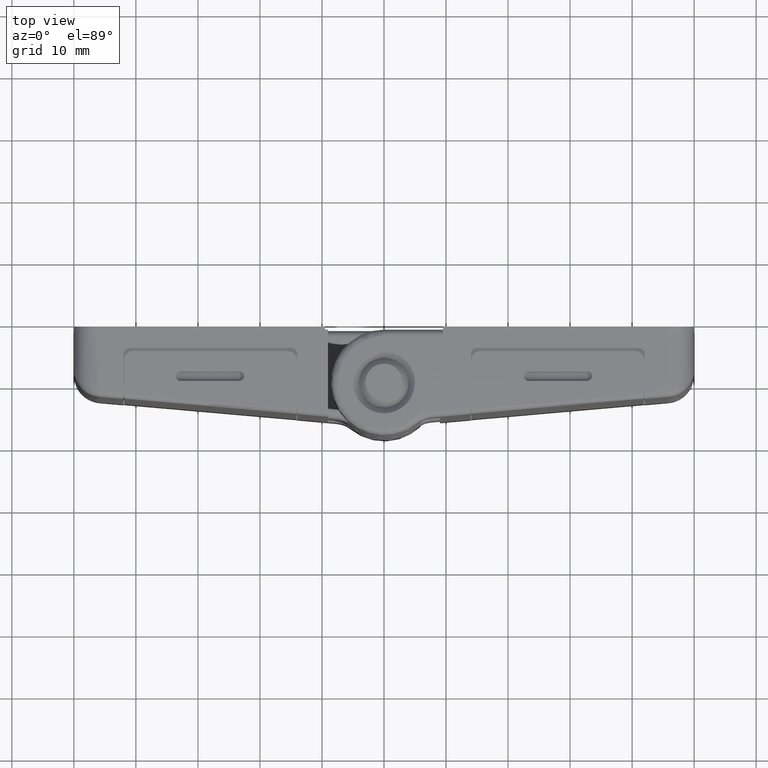
[diagram: clean part render]
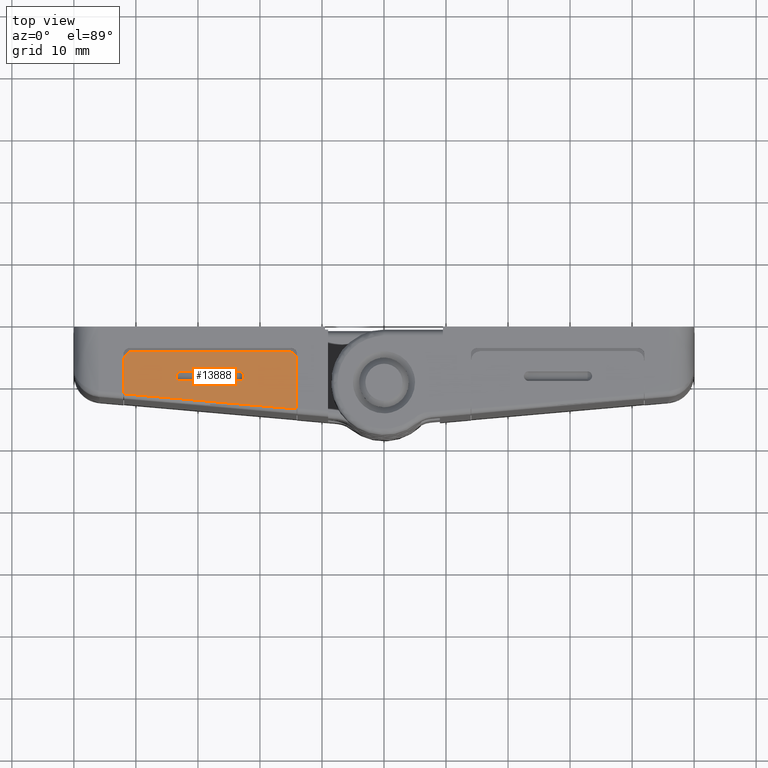
[diagram: same view with one face highlighted and labeled with its STEP entity id]
A machine part, top view. The second image highlights one B-rep face of the part: STEP entity #13888.
In plain terms, the highlighted face is a freeform B-spline surface patch.
Its self-contained STEP definition (entity closure, byte-faithful):
#12845=CARTESIAN_POINT('',(-14.050000000000001,-4.296944128323120,60.0));
#12846=VERTEX_POINT('',#12845);
#12864=CARTESIAN_POINT('',(-41.950000000000003,-1.856009758832115,60.0));
#12865=VERTEX_POINT('',#12864);
#12866=CARTESIAN_POINT('',(-41.950000000000003,-1.856009758832115,60.0));
#12867=CARTESIAN_POINT('',(-14.050000000000001,-4.296944128323120,60.0));
#12868=QUASI_UNIFORM_CURVE('',1,(#12866,#12867),.UNSPECIFIED.,.F.,.U.);
#12869=EDGE_CURVE('',#12865,#12846,#12868,.T.);
#13064=CARTESIAN_POINT('',(-32.799999999999997,1.750000000000000,60.0));
#13065=VERTEX_POINT('',#13064);
#13066=CARTESIAN_POINT('',(-32.799999999999997,0.250000000000000,60.0));
#13067=VERTEX_POINT('',#13066);
#13083=CARTESIAN_POINT('',(-32.799999999999997,0.250000000000000,60.0));
#13084=CARTESIAN_POINT('',(-33.549999999999997,0.250000000000000,60.0));
#13085=CARTESIAN_POINT('',(-33.549999999999997,1.0,60.0));
#13086=CARTESIAN_POINT('',(-33.549999999999997,1.750000000000000,60.0));
#13087=CARTESIAN_POINT('',(-32.799999999999997,1.750000000000000,60.0));
#13095=(BOUNDED_CURVE()B_SPLINE_CURVE(2,(#13083,#13084,#13085,#13086,#13087),.UNSPECIFIED.,.F.,.U.)B_SPLINE_CURVE_WITH_KNOTS((3,2,3),(0.0,0.500000000000000,1.0),.UNSPECIFIED.)CURVE()GEOMETRIC_REPRESENTATION_ITEM()RATIONAL_B_SPLINE_CURVE((1.0,0.707106781186548,1.0,0.707106781186548,1.0))REPRESENTATION_ITEM(''));
#13096=EDGE_CURVE('',#13067,#13065,#13095,.T.);
#13133=CARTESIAN_POINT('',(-23.300727136150751,1.750000000000000,60.0));
#13134=VERTEX_POINT('',#13133);
#13135=CARTESIAN_POINT('',(-23.300727136150751,0.250000000000000,60.0));
#13136=VERTEX_POINT('',#13135);
#13137=CARTESIAN_POINT('',(-23.300727136150751,1.750000000000000,60.0));
#13138=CARTESIAN_POINT('',(-22.550727136150751,1.750000000000000,60.0));
#13139=CARTESIAN_POINT('',(-22.550727136150751,1.0,60.0));
#13140=CARTESIAN_POINT('',(-22.550727136150751,0.250000000000000,60.0));
#13141=CARTESIAN_POINT('',(-23.300727136150751,0.250000000000000,60.0));
#13149=(BOUNDED_CURVE()B_SPLINE_CURVE(2,(#13137,#13138,#13139,#13140,#13141),.UNSPECIFIED.,.F.,.U.)B_SPLINE_CURVE_WITH_KNOTS((3,2,3),(0.0,0.500000000000000,1.0),.UNSPECIFIED.)CURVE()GEOMETRIC_REPRESENTATION_ITEM()RATIONAL_B_SPLINE_CURVE((1.0,0.707106781186548,1.0,0.707106781186548,1.0))REPRESENTATION_ITEM(''));
#13150=EDGE_CURVE('',#13134,#13136,#13149,.T.);
#13188=CARTESIAN_POINT('',(-23.300727136150751,1.750000000000000,60.0));
#13189=CARTESIAN_POINT('',(-32.799999999999997,1.750000000000000,60.0));
#13190=QUASI_UNIFORM_CURVE('',1,(#13188,#13189),.UNSPECIFIED.,.F.,.U.);
#13191=EDGE_CURVE('',#13134,#13065,#13190,.T.);
#13194=CARTESIAN_POINT('',(-23.300727136150751,0.250000000000000,60.0));
#13195=CARTESIAN_POINT('',(-32.799999999999997,0.250000000000000,60.0));
#13196=QUASI_UNIFORM_CURVE('',1,(#13194,#13195),.UNSPECIFIED.,.F.,.U.);
#13197=EDGE_CURVE('',#13136,#13067,#13196,.T.);
#13704=CARTESIAN_POINT('',(-41.950000000000003,3.500000000000000,60.0));
#13705=VERTEX_POINT('',#13704);
#13706=CARTESIAN_POINT('',(-41.950000000000003,-1.856009758832115,60.0));
#13707=CARTESIAN_POINT('',(-41.950000000000003,3.500000000000000,60.0));
#13708=QUASI_UNIFORM_CURVE('',1,(#13706,#13707),.UNSPECIFIED.,.F.,.U.);
#13709=EDGE_CURVE('',#12865,#13705,#13708,.T.);
#13739=CARTESIAN_POINT('',(-14.050000000000001,3.500000000000000,60.0));
#13740=VERTEX_POINT('',#13739);
#13746=CARTESIAN_POINT('',(-14.050000000000001,3.500000000000000,60.0));
#13747=CARTESIAN_POINT('',(-14.050000000000001,-4.296944128323120,60.0));
#13748=QUASI_UNIFORM_CURVE('',1,(#13746,#13747),.UNSPECIFIED.,.F.,.U.);
#13749=EDGE_CURVE('',#13740,#12846,#13748,.T.);
#13771=CARTESIAN_POINT('',(-15.550000000000001,5.0,60.0));
#13772=VERTEX_POINT('',#13771);
#13778=CARTESIAN_POINT('',(-15.550000000000001,5.0,60.0));
#13779=CARTESIAN_POINT('',(-14.050000000000001,5.000000000000001,60.0));
#13780=CARTESIAN_POINT('',(-14.050000000000001,3.500000000000000,60.0));
#13788=(BOUNDED_CURVE()B_SPLINE_CURVE(2,(#13778,#13779,#13780),.UNSPECIFIED.,.F.,.U.)CURVE()GEOMETRIC_REPRESENTATION_ITEM()QUASI_UNIFORM_CURVE()RATIONAL_B_SPLINE_CURVE((1.0,0.707106781186548,1.0))REPRESENTATION_ITEM(''));
#13789=EDGE_CURVE('',#13772,#13740,#13788,.T.);
#13801=CARTESIAN_POINT('',(-40.450000000000003,5.0,60.0));
#13802=VERTEX_POINT('',#13801);
#13808=CARTESIAN_POINT('',(-40.450000000000003,5.0,60.0));
#13809=CARTESIAN_POINT('',(-15.550000000000001,5.0,60.0));
#13810=QUASI_UNIFORM_CURVE('',1,(#13808,#13809),.UNSPECIFIED.,.F.,.U.);
#13811=EDGE_CURVE('',#13802,#13772,#13810,.T.);
#13833=CARTESIAN_POINT('',(-41.950000000000003,3.500000000000000,60.0));
#13834=CARTESIAN_POINT('',(-41.949999999999996,5.000000000000001,60.0));
#13835=CARTESIAN_POINT('',(-40.450000000000003,5.0,60.0));
#13843=(BOUNDED_CURVE()B_SPLINE_CURVE(2,(#13833,#13834,#13835),.UNSPECIFIED.,.F.,.U.)CURVE()GEOMETRIC_REPRESENTATION_ITEM()QUASI_UNIFORM_CURVE()RATIONAL_B_SPLINE_CURVE((1.0,0.707106781186548,1.0))REPRESENTATION_ITEM(''));
#13844=EDGE_CURVE('',#13705,#13802,#13843,.T.);
#13869=CARTESIAN_POINT('',(-43.343605731640103,-4.761326469513579,60.0));
#13870=CARTESIAN_POINT('',(-12.656394268359900,-4.761326469513579,60.0));
#13871=CARTESIAN_POINT('',(-43.343605731640103,5.464382590553932,60.0));
#13872=CARTESIAN_POINT('',(-12.656394268359900,5.464382590553932,60.0));
#13873=B_SPLINE_SURFACE_WITH_KNOTS('',1,1,((#13869,#13871),(#13870,#13872)),.UNSPECIFIED.,.F.,.F.,.U.,(2,2),(2,2),(0.0,30.687211463280200),(0.0,10.225709060067510),.UNSPECIFIED.);
#13874=ORIENTED_EDGE('',*,*,#13709,.F.);
#13875=ORIENTED_EDGE('',*,*,#12869,.T.);
#13876=ORIENTED_EDGE('',*,*,#13749,.F.);
#13877=ORIENTED_EDGE('',*,*,#13789,.F.);
#13878=ORIENTED_EDGE('',*,*,#13811,.F.);
#13879=ORIENTED_EDGE('',*,*,#13844,.F.);
#13880=EDGE_LOOP('',(#13874,#13875,#13876,#13877,#13878,#13879));
#13881=FACE_OUTER_BOUND('',#13880,.T.);
#13882=ORIENTED_EDGE('',*,*,#13191,.F.);
#13883=ORIENTED_EDGE('',*,*,#13150,.T.);
#13884=ORIENTED_EDGE('',*,*,#13197,.T.);
#13885=ORIENTED_EDGE('',*,*,#13096,.T.);
#13886=EDGE_LOOP('',(#13882,#13883,#13884,#13885));
#13887=FACE_BOUND('',#13886,.T.);
#13888=ADVANCED_FACE('',(#13881,#13887),#13873,.T.);